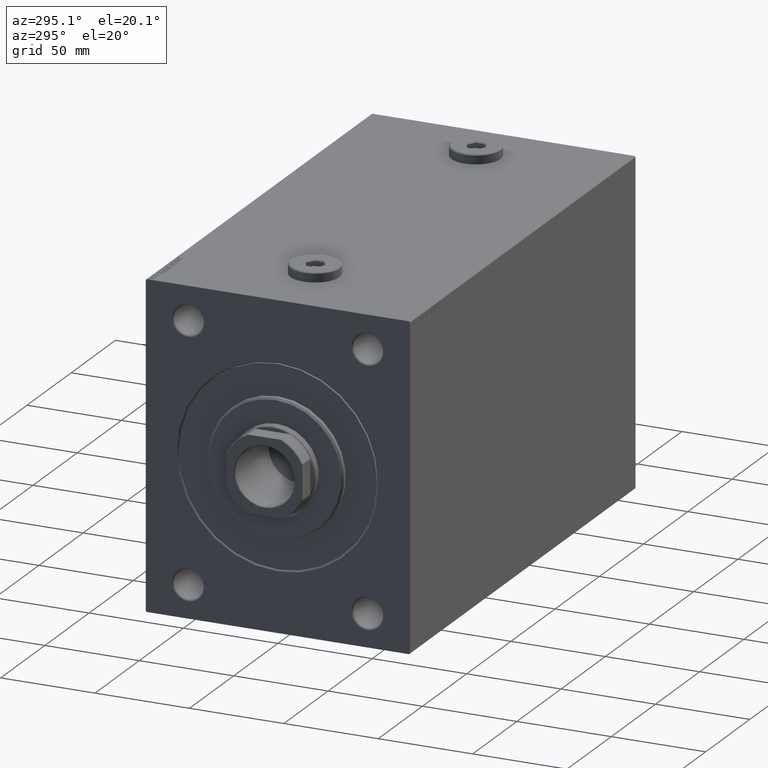
[diagram: clean part render]
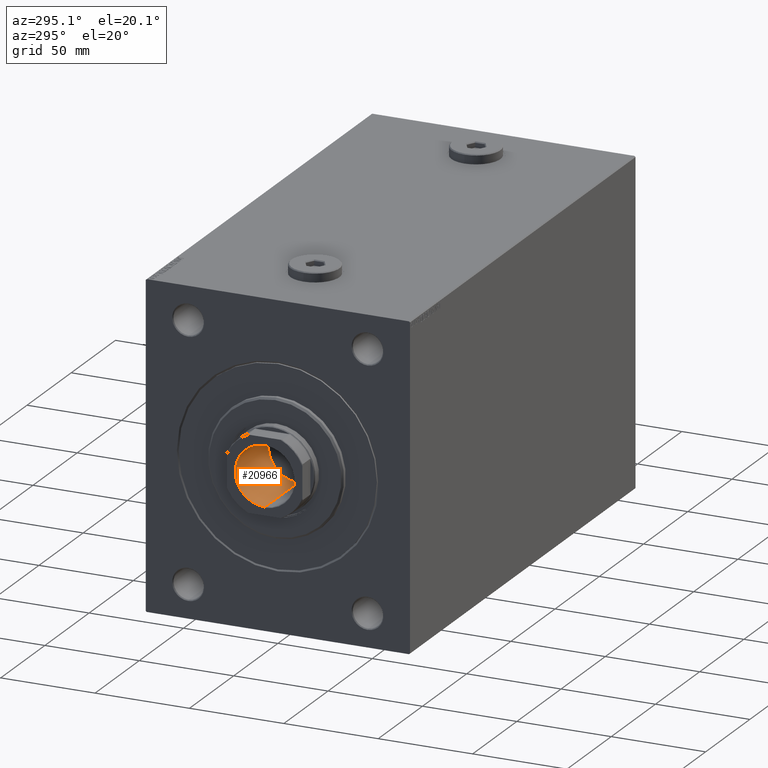
[diagram: same view with one face highlighted and labeled with its STEP entity id]
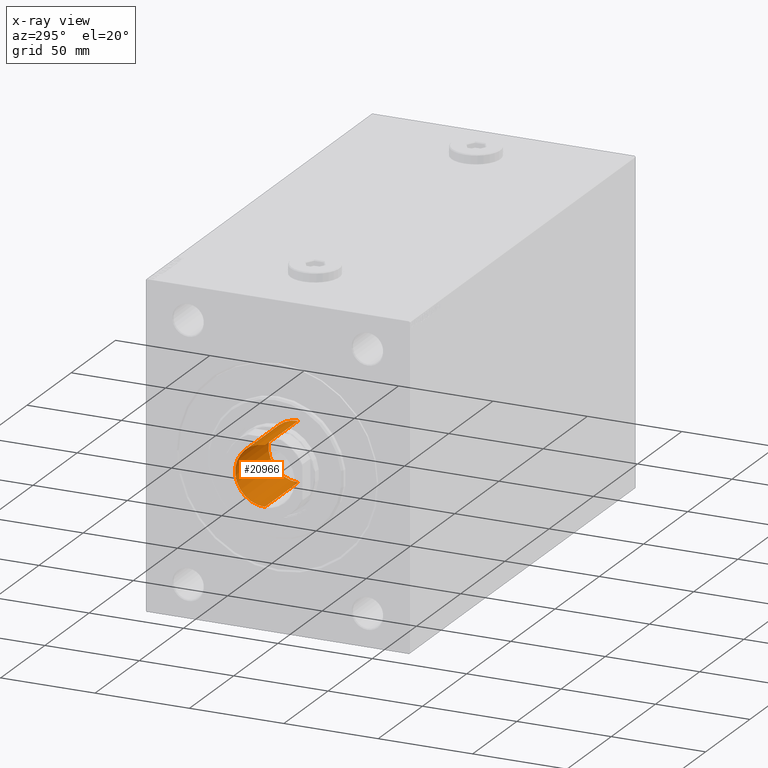
[diagram: x-ray of the same camera — body ghosted, the highlighted face saturated]
A machine part, auxiliary view. The second image highlights one B-rep face of the part: STEP entity #20966.
The next image is the same camera in x-ray: the body ghosted, the highlighted face saturated — about 1% of this face is hidden behind the body in this view.
In plain terms, the highlighted cylindrical surface (edge-blend (fillet) strip) has radius 15.75 mm, axis along (-1, 0, 0).
Its self-contained STEP definition (entity closure, byte-faithful):
#351 = CARTESIAN_POINT ( 'NONE',  ( -15.74999999999999289, 1.928818708657080556E-15, 206.0000000000000284 ) ) ;
#1002 = VERTEX_POINT ( 'NONE', #19864 ) ;
#6546 = LINE ( 'NONE', #41217, #21454 ) ;
#7592 = FACE_OUTER_BOUND ( 'NONE', #10577, .T. ) ;
#8042 = DIRECTION ( 'NONE',  ( 1.000000000000000000, 0.000000000000000000, 0.000000000000000000 ) ) ;
#8569 = VERTEX_POINT ( 'NONE', #36153 ) ;
#10577 = EDGE_LOOP ( 'NONE', ( #27002, #34910, #36946, #32347 ) ) ;
#11769 = DIRECTION ( 'NONE',  ( 1.000000000000000000, 0.000000000000000000, 0.000000000000000000 ) ) ;
#11880 = AXIS2_PLACEMENT_3D ( 'NONE', #42968, #15022, #11769 ) ;
#13921 = EDGE_CURVE ( 'NONE', #38273, #29162, #6546, .T. ) ;
#14297 = EDGE_CURVE ( 'NONE', #8569, #29162, #31057, .T. ) ;
#15022 = DIRECTION ( 'NONE',  ( 0.000000000000000000, 0.000000000000000000, 1.000000000000000000 ) ) ;
#16482 = DIRECTION ( 'NONE',  ( -0.000000000000000000, -0.000000000000000000, 1.000000000000000000 ) ) ;
#16512 = DIRECTION ( 'NONE',  ( -0.000000000000000000, -0.000000000000000000, 1.000000000000000000 ) ) ;
#17547 = CARTESIAN_POINT ( 'NONE',  ( 0.000000000000000000, 0.000000000000000000, 244.0000000000000284 ) ) ;
#18218 = DIRECTION ( 'NONE',  ( -0.000000000000000000, -0.000000000000000000, 1.000000000000000000 ) ) ;
#19180 = DIRECTION ( 'NONE',  ( -0.000000000000000000, -0.000000000000000000, 1.000000000000000000 ) ) ;
#19864 = CARTESIAN_POINT ( 'NONE',  ( 15.74999999999999289, 0.000000000000000000, 206.0000000000000284 ) ) ;
#19877 = LINE ( 'NONE', #26570, #45530 ) ;
#20966 = ADVANCED_FACE ( 'NONE', ( #7592 ), #24707, .F. ) ;
#21454 = VECTOR ( 'NONE', #16512, 1000.000000000000000 ) ;
#23771 = AXIS2_PLACEMENT_3D ( 'NONE', #17547, #18218, #8042 ) ;
#24707 = CYLINDRICAL_SURFACE ( 'NONE', #23771, 15.74999999999999289 ) ;
#26009 = CARTESIAN_POINT ( 'NONE',  ( 0.000000000000000000, 0.000000000000000000, 206.0000000000000284 ) ) ;
#26570 = CARTESIAN_POINT ( 'NONE',  ( 15.74999999999999289, 0.000000000000000000, 244.0000000000000284 ) ) ;
#27002 = ORIENTED_EDGE ( 'NONE', *, *, #13921, .F. ) ;
#29162 = VERTEX_POINT ( 'NONE', #31850 ) ;
#30890 = EDGE_CURVE ( 'NONE', #1002, #8569, #19877, .T. ) ;
#31057 = CIRCLE ( 'NONE', #11880, 15.74999999999999289 ) ;
#31589 = CIRCLE ( 'NONE', #37493, 15.74999999999999289 ) ;
#31850 = CARTESIAN_POINT ( 'NONE',  ( -15.74999999999999289, 1.928818708657080556E-15, 243.6999999999999602 ) ) ;
#32347 = ORIENTED_EDGE ( 'NONE', *, *, #14297, .T. ) ;
#32718 = DIRECTION ( 'NONE',  ( 1.000000000000000000, 0.000000000000000000, 0.000000000000000000 ) ) ;
#33759 = EDGE_CURVE ( 'NONE', #1002, #38273, #31589, .T. ) ;
#34910 = ORIENTED_EDGE ( 'NONE', *, *, #33759, .F. ) ;
#36153 = CARTESIAN_POINT ( 'NONE',  ( 15.74999999999999289, 0.000000000000000000, 243.6999999999999602 ) ) ;
#36946 = ORIENTED_EDGE ( 'NONE', *, *, #30890, .T. ) ;
#37493 = AXIS2_PLACEMENT_3D ( 'NONE', #26009, #16482, #32718 ) ;
#38273 = VERTEX_POINT ( 'NONE', #351 ) ;
#41217 = CARTESIAN_POINT ( 'NONE',  ( -15.74999999999999289, 1.928818708657080556E-15, 244.0000000000000284 ) ) ;
#42968 = CARTESIAN_POINT ( 'NONE',  ( 0.000000000000000000, 0.000000000000000000, 243.6999999999999602 ) ) ;
#45530 = VECTOR ( 'NONE', #19180, 1000.000000000000000 ) ;